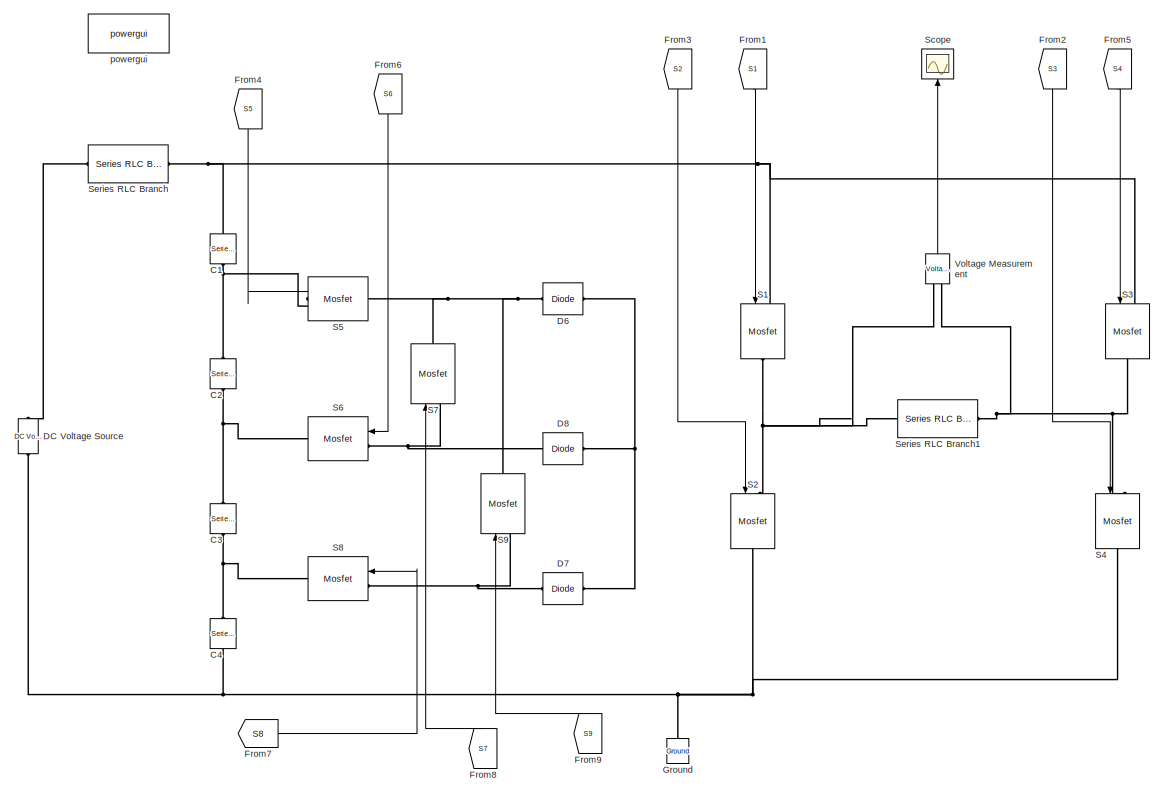
[diagram: root canvas - part 1/2, left side, full height]
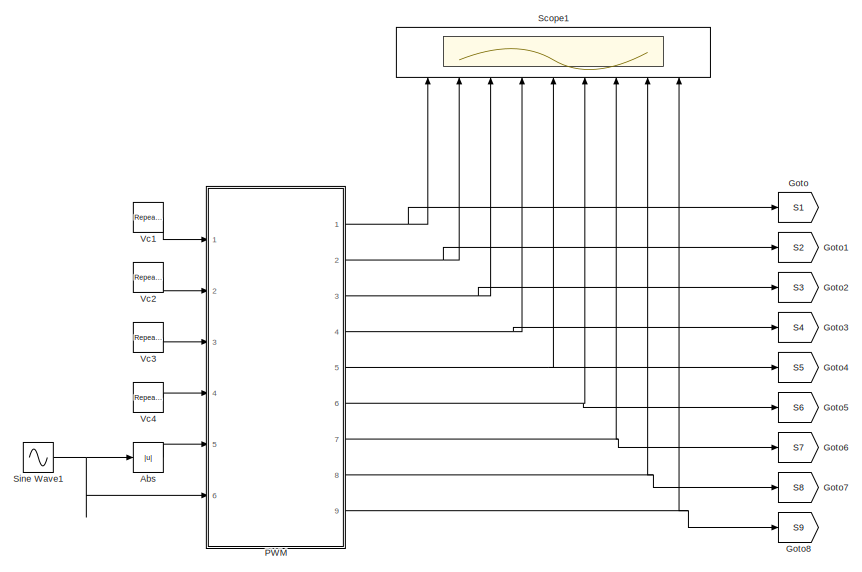
[diagram: root canvas - part 2/2, middle right region]
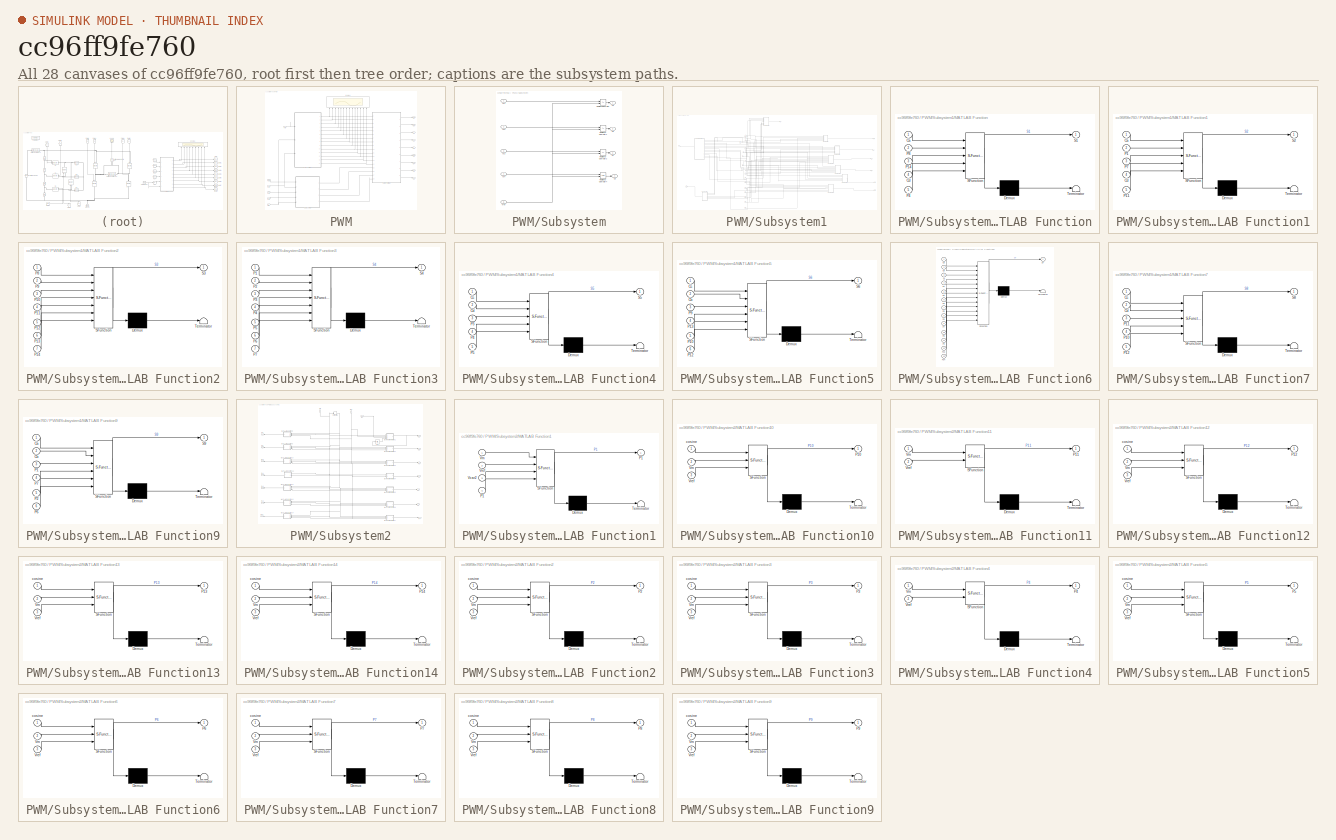
[diagram: thumbnail index - all 28 canvases of the model, root first then tree order]
MODEL slx_cc96ff9fe760
KIND model
CONFIG AbsTol = auto
CONFIG EnableMultiTasking = off
CONFIG FixedStep = 1e-5
CONFIG MaxStep = 1e-4
CONFIG MinStep = auto
CONFIG RelTol = 1e-3
CONFIG SampleTimeConstraint = Unconstrained
CONFIG Solver = VariableStepAuto
CONFIG SolverName = VariableStepAuto
CONFIG StartTime = 0.0
CONFIG StopTime = 1
BLOCK [Abs] Abs
  SaturateOnIntegerOverflow = off
BLOCK [Reference] C1  REF=powerlib/Elements/Series RLC Branch
  Ports = [0, 0, 0, 0, 0, 1, 1]
  SourceBlock = powerlib/Elements/Series RLC Branch
  SourceProductBaseCode = PS
  SourceProductName = Simscape Power Systems
  SourceType = Series RLC Branch
BLOCK [Reference] C2  REF=powerlib/Elements/Series RLC Branch
  Ports = [0, 0, 0, 0, 0, 1, 1]
  SourceBlock = powerlib/Elements/Series RLC Branch
  SourceProductBaseCode = PS
  SourceProductName = Simscape Power Systems
  SourceType = Series RLC Branch
BLOCK [Reference] C3  REF=powerlib/Elements/Series RLC Branch
  Ports = [0, 0, 0, 0, 0, 1, 1]
  SourceBlock = powerlib/Elements/Series RLC Branch
  SourceProductBaseCode = PS
  SourceProductName = Simscape Power Systems
  SourceType = Series RLC Branch
BLOCK [Reference] C4  REF=powerlib/Elements/Series RLC Branch
  Ports = [0, 0, 0, 0, 0, 1, 1]
  SourceBlock = powerlib/Elements/Series RLC Branch
  SourceProductBaseCode = PS
  SourceProductName = Simscape Power Systems
  SourceType = Series RLC Branch
BLOCK [Reference] D6  REF=powerlib/Power
Electronics/Diode
  Ports = [0, 0, 0, 0, 0, 1, 1]
  SourceBlock = powerlib/Power\nElectronics/Diode
  SourceProductBaseCode = PS
  SourceProductName = Simscape Power Systems
  SourceType = Diode
BLOCK [Reference] D7  REF=powerlib/Power
Electronics/Diode
  Ports = [0, 0, 0, 0, 0, 1, 1]
  SourceBlock = powerlib/Power\nElectronics/Diode
  SourceProductBaseCode = PS
  SourceProductName = Simscape Power Systems
  SourceType = Diode
BLOCK [Reference] D8  REF=powerlib/Power
Electronics/Diode
  Ports = [0, 0, 0, 0, 0, 1, 1]
  SourceBlock = powerlib/Power\nElectronics/Diode
  SourceProductBaseCode = PS
  SourceProductName = Simscape Power Systems
  SourceType = Diode
BLOCK [Reference] DC Voltage Source  REF=powerlib/Electrical
Sources/DC Voltage Source
  Ports = [0, 0, 0, 0, 0, 1, 1]
  SourceBlock = powerlib/Electrical\nSources/DC Voltage Source
  SourceProductBaseCode = PS
  SourceProductName = Simscape Power Systems
  SourceType = DC Voltage Source
BLOCK [From] From1
  GotoTag = S1
BLOCK [From] From2
  GotoTag = S3
BLOCK [From] From3
  GotoTag = S2
BLOCK [From] From4
  GotoTag = S5
BLOCK [From] From5
  GotoTag = S4
BLOCK [From] From6
  GotoTag = S6
BLOCK [From] From7
  GotoTag = S8
BLOCK [From] From8
  GotoTag = S7
BLOCK [From] From9
  GotoTag = S9
BLOCK [Goto] Goto
  GotoTag = S1
BLOCK [Goto] Goto1
  GotoTag = S2
BLOCK [Goto] Goto2
  GotoTag = S3
BLOCK [Goto] Goto3
  GotoTag = S4
BLOCK [Goto] Goto4
  GotoTag = S5
BLOCK [Goto] Goto5
  GotoTag = S6
BLOCK [Goto] Goto6
  GotoTag = S7
BLOCK [Goto] Goto7
  GotoTag = S8
BLOCK [Goto] Goto8
  GotoTag = S9
BLOCK [Reference] Ground  REF=powerlib/Elements/Ground
  Ports = [0, 0, 0, 0, 0, 1]
  SourceBlock = powerlib/Elements/Ground
  SourceProductBaseCode = PS
  SourceProductName = Simscape Power Systems
  SourceType = Ground
BLOCK [SubSystem] PWM
  Ports = [6, 9]
  RequestExecContextInheritance = off
  Variant = off
BLOCK [Outport] PWM/S1
  IconDisplay = Port number
BLOCK [Outport] PWM/S2
  IconDisplay = Port number
  Port = 2
BLOCK [Outport] PWM/S3
  IconDisplay = Port number
  Port = 3
BLOCK [Outport] PWM/S4
  IconDisplay = Port number
  Port = 4
BLOCK [Outport] PWM/S5
  IconDisplay = Port number
  Port = 5
BLOCK [Outport] PWM/S6
  IconDisplay = Port number
  Port = 6
BLOCK [Outport] PWM/S7
  IconDisplay = Port number
  Port = 7
BLOCK [Outport] PWM/S8
  IconDisplay = Port number
  Port = 8
BLOCK [Outport] PWM/S9
  IconDisplay = Port number
  Port = 9
BLOCK [Scope] PWM/Scope2
  NumInputPorts = 14
  Ports = [14]
  ScopeSpecificationString = Simulink.scopes.TimeScopeBlockCfg('CurrentConfiguration', extmgr.ConfigurationSet(extmgr.Configuration('Core','General UI',true,'FigureColor',[0.8 0.8 0.8]),extmgr.Configuration('Core','Source UI',true),extmgr.Configuration('Sources','WiredSimulink',true,'DataLoggingVariableName','ScopeData2'),extmgr.Configuration('Visuals','Time Domain',true,'SerializedDisplays',{struct('MinYLimReal','-0.125','Ma...<+2385ch>
BLOCK [SubSystem] PWM/Subsystem
  Ports = [5, 4]
  RequestExecContextInheritance = off
  Variant = off
BLOCK [Outport] PWM/Subsystem/Ca
  IconDisplay = Port number
BLOCK [Outport] PWM/Subsystem/Cb
  IconDisplay = Port number
  Port = 2
BLOCK [Outport] PWM/Subsystem/Cc
  IconDisplay = Port number
  Port = 3
BLOCK [Outport] PWM/Subsystem/Cd
  IconDisplay = Port number
  Port = 4
BLOCK [RelationalOperator] PWM/Subsystem/Relational Operator
  InputSameDT = off
  Operator = <=
  OutDataTypeStr = boolean
  Ports = [2, 1]
  RndMeth = Simplest
BLOCK [RelationalOperator] PWM/Subsystem/Relational Operator1
  InputSameDT = off
  Operator = <=
  OutDataTypeStr = boolean
  Ports = [2, 1]
  RndMeth = Simplest
BLOCK [RelationalOperator] PWM/Subsystem/Relational Operator2
  InputSameDT = off
  Operator = <=
  OutDataTypeStr = boolean
  Ports = [2, 1]
  RndMeth = Simplest
BLOCK [RelationalOperator] PWM/Subsystem/Relational Operator4
  InputSameDT = off
  OutDataTypeStr = boolean
  Ports = [2, 1]
  RndMeth = Simplest
BLOCK [Inport] PWM/Subsystem/Vc1
  IconDisplay = Port number
BLOCK [Inport] PWM/Subsystem/Vc2
  IconDisplay = Port number
  Port = 2
BLOCK [Inport] PWM/Subsystem/Vc3
  IconDisplay = Port number
  Port = 3
BLOCK [Inport] PWM/Subsystem/Vc4
  IconDisplay = Port number
  Port = 4
BLOCK [Inport] PWM/Subsystem/Vref 
  IconDisplay = Port number
  Port = 5
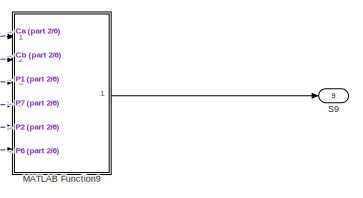
[diagram: PWM/Subsystem1 - part 1/6, top center region]
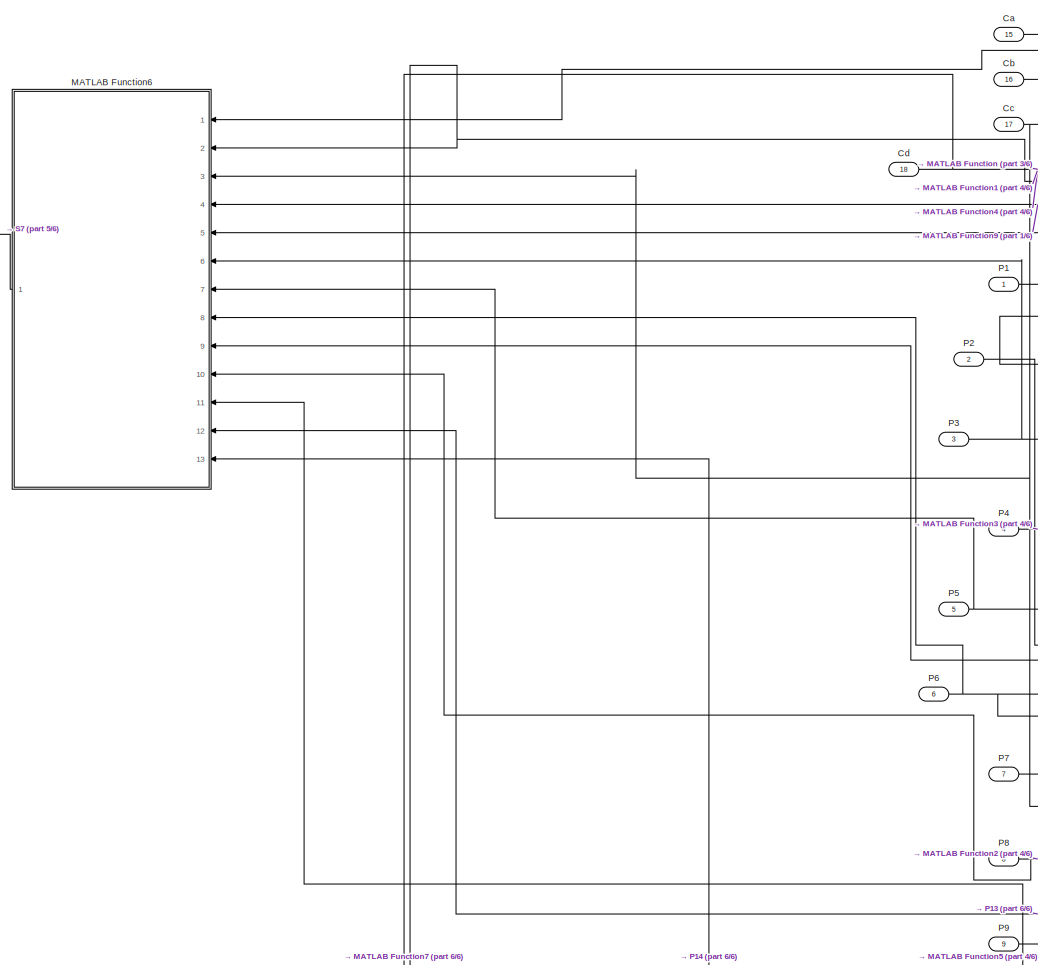
[diagram: PWM/Subsystem1 - part 2/6, middle left region]
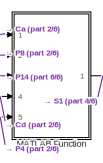
[diagram: PWM/Subsystem1 - part 3/6, top right region]
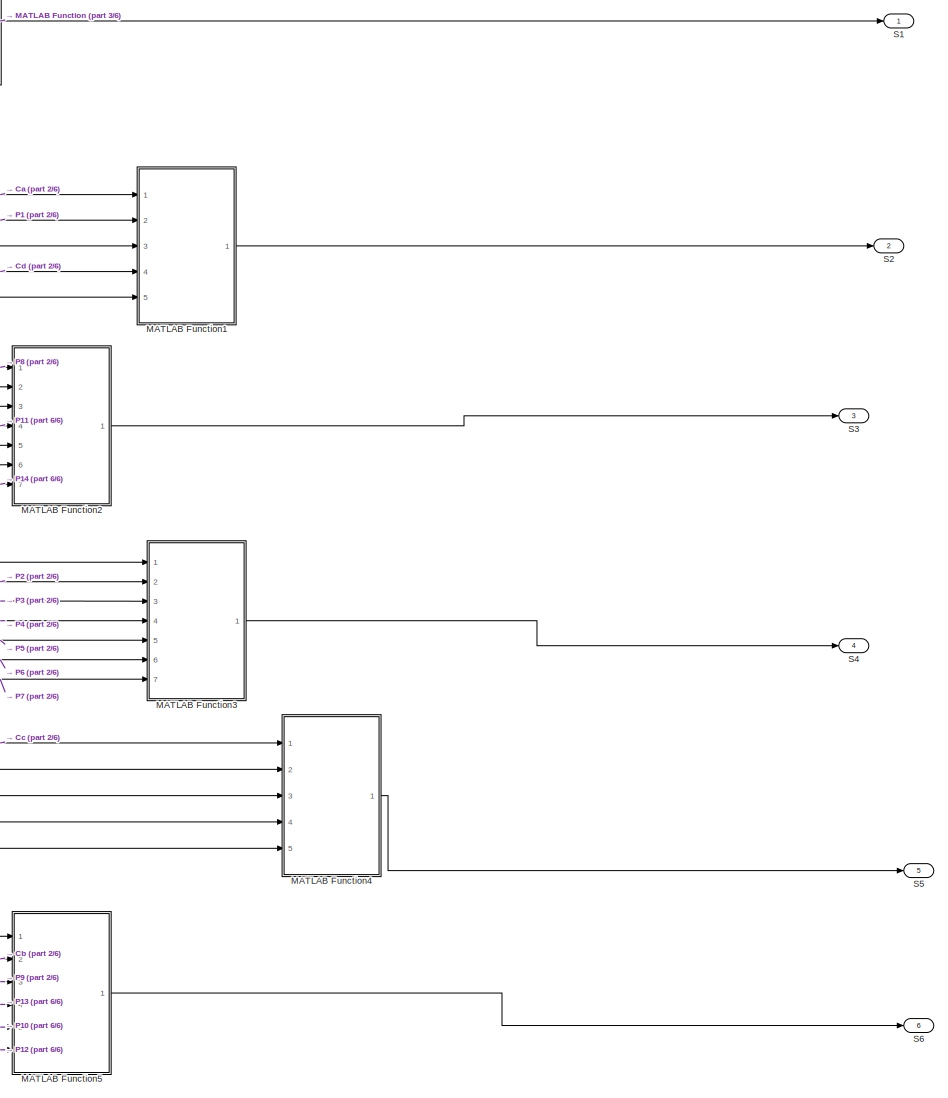
[diagram: PWM/Subsystem1 - part 4/6, middle right region]
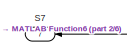
[diagram: PWM/Subsystem1 - part 5/6, top left region]
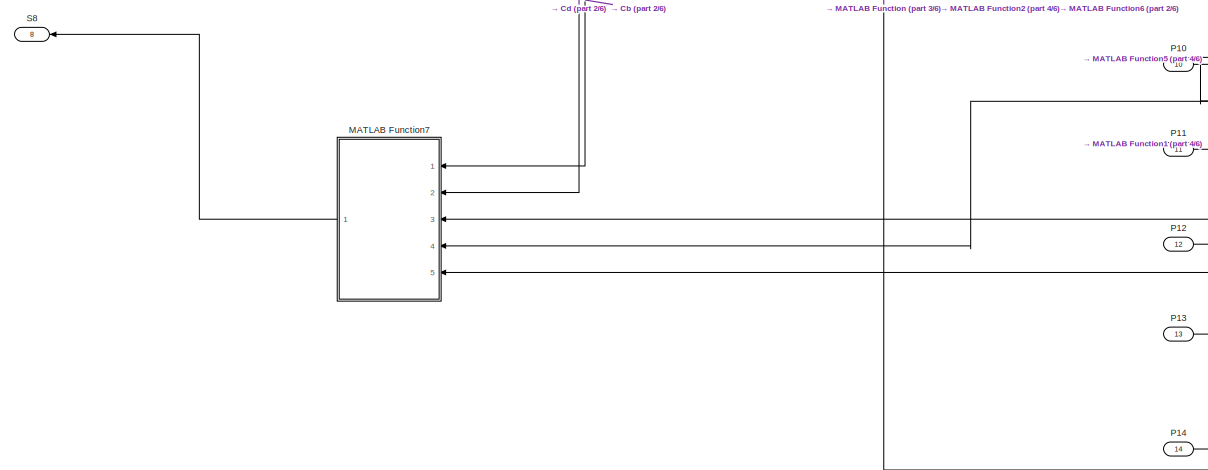
[diagram: PWM/Subsystem1 - part 6/6, bottom left region]
BLOCK [SubSystem] PWM/Subsystem1
  Ports = [18, 9]
  RequestExecContextInheritance = off
  Variant = off
BLOCK [Inport] PWM/Subsystem1/Ca
  IconDisplay = Port number
  Port = 15
BLOCK [Inport] PWM/Subsystem1/Cb
  IconDisplay = Port number
  Port = 16
BLOCK [Inport] PWM/Subsystem1/Cc
  IconDisplay = Port number
  Port = 17
BLOCK [Inport] PWM/Subsystem1/Cd
  IconDisplay = Port number
  Port = 18
BLOCK [SubSystem] PWM/Subsystem1/MATLAB Function
  ErrorFcn = Stateflow.Translate.translate
  PermitHierarchicalResolution = ExplicitOnly
  Ports = [5, 1]
  RequestExecContextInheritance = off
  SFBlockType = MATLAB Function
  TreatAsAtomicUnit = on
  Variant = off
BLOCK [Demux] PWM/Subsystem1/MATLAB Function/ Demux 
  Outputs = 1
  Ports = [1, 1]
BLOCK [S-Function] PWM/Subsystem1/MATLAB Function/ SFunction 
  EnableBusSupport = on
  FunctionName = sf_sfun
  PortCounts = [5 2]
  Ports = [5, 2]
  SFcnIsStateOwnerBlock = off
  SFunctionDeploymentMode = off
  Tag = Stateflow S-Function NineLevelNEW 1
BLOCK [Terminator] PWM/Subsystem1/MATLAB Function/ Terminator 
BLOCK [Inport] PWM/Subsystem1/MATLAB Function/Ca
  IconDisplay = Port number
BLOCK [Inport] PWM/Subsystem1/MATLAB Function/Cd
  IconDisplay = Port number
  Port = 4
BLOCK [Inport] PWM/Subsystem1/MATLAB Function/P14
  IconDisplay = Port number
  Port = 3
BLOCK [Inport] PWM/Subsystem1/MATLAB Function/P4
  IconDisplay = Port number
  Port = 5
BLOCK [Inport] PWM/Subsystem1/MATLAB Function/P8
  IconDisplay = Port number
  Port = 2
BLOCK [Outport] PWM/Subsystem1/MATLAB Function/S1
  IconDisplay = Port number
BLOCK [SubSystem] PWM/Subsystem1/MATLAB Function1
  ErrorFcn = Stateflow.Translate.translate
  PermitHierarchicalResolution = ExplicitOnly
  Ports = [5, 1]
  RequestExecContextInheritance = off
  SFBlockType = MATLAB Function
  TreatAsAtomicUnit = on
  Variant = off
BLOCK [Demux] PWM/Subsystem1/MATLAB Function1/ Demux 
  Outputs = 1
  Ports = [1, 1]
BLOCK [S-Function] PWM/Subsystem1/MATLAB Function1/ SFunction 
  EnableBusSupport = on
  FunctionName = sf_sfun
  PortCounts = [5 2]
  Ports = [5, 2]
  SFcnIsStateOwnerBlock = off
  SFunctionDeploymentMode = off
  Tag = Stateflow S-Function NineLevelNEW 3
BLOCK [Terminator] PWM/Subsystem1/MATLAB Function1/ Terminator 
BLOCK [Inport] PWM/Subsystem1/MATLAB Function1/Ca
  IconDisplay = Port number
BLOCK [Inport] PWM/Subsystem1/MATLAB Function1/Cd
  IconDisplay = Port number
  Port = 4
BLOCK [Inport] PWM/Subsystem1/MATLAB Function1/P1
  IconDisplay = Port number
  Port = 2
BLOCK [Inport] PWM/Subsystem1/MATLAB Function1/P11
  IconDisplay = Port number
  Port = 5
BLOCK [Inport] PWM/Subsystem1/MATLAB Function1/P7
  IconDisplay = Port number
  Port = 3
BLOCK [Outport] PWM/Subsystem1/MATLAB Function1/S2
  IconDisplay = Port number
BLOCK [SubSystem] PWM/Subsystem1/MATLAB Function2
  ErrorFcn = Stateflow.Translate.translate
  PermitHierarchicalResolution = ExplicitOnly
  Ports = [7, 1]
  RequestExecContextInheritance = off
  SFBlockType = MATLAB Function
  TreatAsAtomicUnit = on
  Variant = off
BLOCK [Demux] PWM/Subsystem1/MATLAB Function2/ Demux 
  Outputs = 1
  Ports = [1, 1]
BLOCK [S-Function] PWM/Subsystem1/MATLAB Function2/ SFunction 
  EnableBusSupport = on
  FunctionName = sf_sfun
  PortCounts = [7 2]
  Ports = [7, 2]
  SFcnIsStateOwnerBlock = off
  SFunctionDeploymentMode = off
  Tag = Stateflow S-Function NineLevelNEW 4
BLOCK [Terminator] PWM/Subsystem1/MATLAB Function2/ Terminator 
BLOCK [Inport] PWM/Subsystem1/MATLAB Function2/P10
  IconDisplay = Port number
  Port = 3
BLOCK [Inport] PWM/Subsystem1/MATLAB Function2/P11
  IconDisplay = Port number
  Port = 4
BLOCK [Inport] PWM/Subsystem1/MATLAB Function2/P12
  IconDisplay = Port number
  Port = 5
BLOCK [Inport] PWM/Subsystem1/MATLAB Function2/P13
  IconDisplay = Port number
  Port = 6
BLOCK [Inport] PWM/Subsystem1/MATLAB Function2/P14
  IconDisplay = Port number
  Port = 7
BLOCK [Inport] PWM/Subsystem1/MATLAB Function2/P8
  IconDisplay = Port number
BLOCK [Inport] PWM/Subsystem1/MATLAB Function2/P9
  IconDisplay = Port number
  Port = 2
BLOCK [Outport] PWM/Subsystem1/MATLAB Function2/S3
  IconDisplay = Port number
BLOCK [SubSystem] PWM/Subsystem1/MATLAB Function3
  ErrorFcn = Stateflow.Translate.translate
  PermitHierarchicalResolution = ExplicitOnly
  Ports = [7, 1]
  RequestExecContextInheritance = off
  SFBlockType = MATLAB Function
  TreatAsAtomicUnit = on
  Variant = off
BLOCK [Demux] PWM/Subsystem1/MATLAB Function3/ Demux 
  Outputs = 1
  Ports = [1, 1]
BLOCK [S-Function] PWM/Subsystem1/MATLAB Function3/ SFunction 
  EnableBusSupport = on
  FunctionName = sf_sfun
  PortCounts = [7 2]
  Ports = [7, 2]
  SFcnIsStateOwnerBlock = off
  SFunctionDeploymentMode = off
  Tag = Stateflow S-Function NineLevelNEW 5
BLOCK [Terminator] PWM/Subsystem1/MATLAB Function3/ Terminator 
BLOCK [Inport] PWM/Subsystem1/MATLAB Function3/P1
  IconDisplay = Port number
BLOCK [Inport] PWM/Subsystem1/MATLAB Function3/P2
  IconDisplay = Port number
  Port = 2
BLOCK [Inport] PWM/Subsystem1/MATLAB Function3/P3
  IconDisplay = Port number
  Port = 3
BLOCK [Inport] PWM/Subsystem1/MATLAB Function3/P4
  IconDisplay = Port number
  Port = 4
BLOCK [Inport] PWM/Subsystem1/MATLAB Function3/P5
  IconDisplay = Port number
  Port = 5
BLOCK [Inport] PWM/Subsystem1/MATLAB Function3/P6
  IconDisplay = Port number
  Port = 6
BLOCK [Inport] PWM/Subsystem1/MATLAB Function3/P7
  IconDisplay = Port number
  Port = 7
BLOCK [Outport] PWM/Subsystem1/MATLAB Function3/S4
  IconDisplay = Port number
BLOCK [SubSystem] PWM/Subsystem1/MATLAB Function4
  ErrorFcn = Stateflow.Translate.translate
  PermitHierarchicalResolution = ExplicitOnly
  Ports = [5, 1]
  RequestExecContextInheritance = off
  SFBlockType = MATLAB Function
  TreatAsAtomicUnit = on
  Variant = off
BLOCK [Demux] PWM/Subsystem1/MATLAB Function4/ Demux 
  Outputs = 1
  Ports = [1, 1]
BLOCK [S-Function] PWM/Subsystem1/MATLAB Function4/ SFunction 
  EnableBusSupport = on
  FunctionName = sf_sfun
  PortCounts = [5 2]
  Ports = [5, 2]
  SFcnIsStateOwnerBlock = off
  SFunctionDeploymentMode = off
  Tag = Stateflow S-Function NineLevelNEW 6
BLOCK [Terminator] PWM/Subsystem1/MATLAB Function4/ Terminator 
BLOCK [Inport] PWM/Subsystem1/MATLAB Function4/Cc
  IconDisplay = Port number
BLOCK [Inport] PWM/Subsystem1/MATLAB Function4/Cd
  IconDisplay = Port number
  Port = 2
BLOCK [Inport] PWM/Subsystem1/MATLAB Function4/P3
  IconDisplay = Port number
  Port = 3
BLOCK [Inport] PWM/Subsystem1/MATLAB Function4/P4
  IconDisplay = Port number
  Port = 4
BLOCK [Inport] PWM/Subsystem1/MATLAB Function4/P5
  IconDisplay = Port number
  Port = 5
BLOCK [Outport] PWM/Subsystem1/MATLAB Function4/S5
  IconDisplay = Port number
BLOCK [SubSystem] PWM/Subsystem1/MATLAB Function5
  ErrorFcn = Stateflow.Translate.translate
  PermitHierarchicalResolution = ExplicitOnly
  Ports = [6, 1]
  RequestExecContextInheritance = off
  SFBlockType = MATLAB Function
  TreatAsAtomicUnit = on
  Variant = off
BLOCK [Demux] PWM/Subsystem1/MATLAB Function5/ Demux 
  Outputs = 1
  Ports = [1, 1]
BLOCK [S-Function] PWM/Subsystem1/MATLAB Function5/ SFunction 
  EnableBusSupport = on
  FunctionName = sf_sfun
  PortCounts = [6 2]
  Ports = [6, 2]
  SFcnIsStateOwnerBlock = off
  SFunctionDeploymentMode = off
  Tag = Stateflow S-Function NineLevelNEW 7
BLOCK [Terminator] PWM/Subsystem1/MATLAB Function5/ Terminator 
BLOCK [Inport] PWM/Subsystem1/MATLAB Function5/Cb
  IconDisplay = Port number
  Port = 2
BLOCK [Inport] PWM/Subsystem1/MATLAB Function5/Cc
  IconDisplay = Port number
BLOCK [Inport] PWM/Subsystem1/MATLAB Function5/P10
  IconDisplay = Port number
  Port = 5
BLOCK [Inport] PWM/Subsystem1/MATLAB Function5/P12
  IconDisplay = Port number
  Port = 6
BLOCK [Inport] PWM/Subsystem1/MATLAB Function5/P13
  IconDisplay = Port number
  Port = 4
BLOCK [Inport] PWM/Subsystem1/MATLAB Function5/P9
  IconDisplay = Port number
  Port = 3
BLOCK [Outport] PWM/Subsystem1/MATLAB Function5/S6
  IconDisplay = Port number
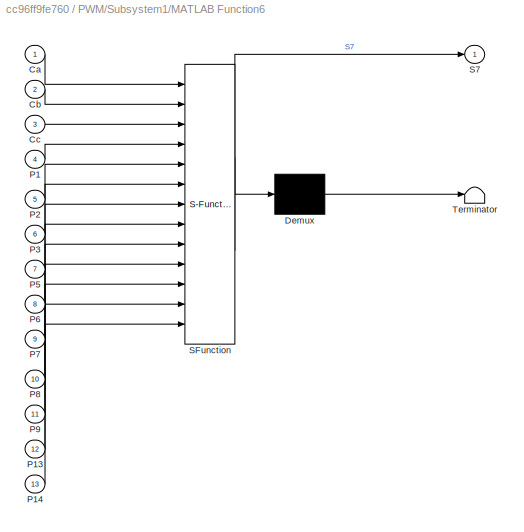
BLOCK [SubSystem] PWM/Subsystem1/MATLAB Function6
  ErrorFcn = Stateflow.Translate.translate
  PermitHierarchicalResolution = ExplicitOnly
  Ports = [13, 1]
  RequestExecContextInheritance = off
  SFBlockType = MATLAB Function
  TreatAsAtomicUnit = on
  Variant = off
BLOCK [Demux] PWM/Subsystem1/MATLAB Function6/ Demux 
  Outputs = 1
  Ports = [1, 1]
BLOCK [S-Function] PWM/Subsystem1/MATLAB Function6/ SFunction 
  EnableBusSupport = on
  FunctionName = sf_sfun
  PortCounts = [13 2]
  Ports = [13, 2]
  SFcnIsStateOwnerBlock = off
  SFunctionDeploymentMode = off
  Tag = Stateflow S-Function NineLevelNEW 8
BLOCK [Terminator] PWM/Subsystem1/MATLAB Function6/ Terminator 
BLOCK [Inport] PWM/Subsystem1/MATLAB Function6/Ca
  IconDisplay = Port number
BLOCK [Inport] PWM/Subsystem1/MATLAB Function6/Cb
  IconDisplay = Port number
  Port = 2
BLOCK [Inport] PWM/Subsystem1/MATLAB Function6/Cc
  IconDisplay = Port number
  Port = 3
BLOCK [Inport] PWM/Subsystem1/MATLAB Function6/P1
  IconDisplay = Port number
  Port = 4
BLOCK [Inport] PWM/Subsystem1/MATLAB Function6/P13
  IconDisplay = Port number
  Port = 12
BLOCK [Inport] PWM/Subsystem1/MATLAB Function6/P14
  IconDisplay = Port number
  Port = 13
BLOCK [Inport] PWM/Subsystem1/MATLAB Function6/P2
  IconDisplay = Port number
  Port = 5
BLOCK [Inport] PWM/Subsystem1/MATLAB Function6/P3
  IconDisplay = Port number
  Port = 6
BLOCK [Inport] PWM/Subsystem1/MATLAB Function6/P5
  IconDisplay = Port number
  Port = 7
BLOCK [Inport] PWM/Subsystem1/MATLAB Function6/P6
  IconDisplay = Port number
  Port = 8
BLOCK [Inport] PWM/Subsystem1/MATLAB Function6/P7
  IconDisplay = Port number
  Port = 9
BLOCK [Inport] PWM/Subsystem1/MATLAB Function6/P8
  IconDisplay = Port number
  Port = 10
BLOCK [Inport] PWM/Subsystem1/MATLAB Function6/P9
  IconDisplay = Port number
  Port = 11
BLOCK [Outport] PWM/Subsystem1/MATLAB Function6/S7
  IconDisplay = Port number
BLOCK [SubSystem] PWM/Subsystem1/MATLAB Function7
  ErrorFcn = Stateflow.Translate.translate
  PermitHierarchicalResolution = ExplicitOnly
  Ports = [5, 1]
  RequestExecContextInheritance = off
  SFBlockType = MATLAB Function
  TreatAsAtomicUnit = on
  Variant = off
BLOCK [Demux] PWM/Subsystem1/MATLAB Function7/ Demux 
  Outputs = 1
  Ports = [1, 1]
BLOCK [S-Function] PWM/Subsystem1/MATLAB Function7/ SFunction 
  EnableBusSupport = on
  FunctionName = sf_sfun
  PortCounts = [5 2]
  Ports = [5, 2]
  SFcnIsStateOwnerBlock = off
  SFunctionDeploymentMode = off
  Tag = Stateflow S-Function NineLevelNEW 9
BLOCK [Terminator] PWM/Subsystem1/MATLAB Function7/ Terminator 
BLOCK [Inport] PWM/Subsystem1/MATLAB Function7/Cc
  IconDisplay = Port number
BLOCK [Inport] PWM/Subsystem1/MATLAB Function7/Cd
  IconDisplay = Port number
  Port = 2
BLOCK [Inport] PWM/Subsystem1/MATLAB Function7/P10
  IconDisplay = Port number
  Port = 4
BLOCK [Inport] PWM/Subsystem1/MATLAB Function7/P11
  IconDisplay = Port number
  Port = 3
BLOCK [Inport] PWM/Subsystem1/MATLAB Function7/P12
  IconDisplay = Port number
  Port = 5
BLOCK [Outport] PWM/Subsystem1/MATLAB Function7/S8
  IconDisplay = Port number
BLOCK [SubSystem] PWM/Subsystem1/MATLAB Function9
  ErrorFcn = Stateflow.Translate.translate
  PermitHierarchicalResolution = ExplicitOnly
  Ports = [6, 1]
  RequestExecContextInheritance = off
  SFBlockType = MATLAB Function
  TreatAsAtomicUnit = on
  Variant = off
BLOCK [Demux] PWM/Subsystem1/MATLAB Function9/ Demux 
  Outputs = 1
  Ports = [1, 1]
BLOCK [S-Function] PWM/Subsystem1/MATLAB Function9/ SFunction 
  EnableBusSupport = on
  FunctionName = sf_sfun
  PortCounts = [6 2]
  Ports = [6, 2]
  SFcnIsStateOwnerBlock = off
  SFunctionDeploymentMode = off
  Tag = Stateflow S-Function NineLevelNEW 11
BLOCK [Terminator] PWM/Subsystem1/MATLAB Function9/ Terminator 
BLOCK [Inport] PWM/Subsystem1/MATLAB Function9/Ca
  IconDisplay = Port number
BLOCK [Inport] PWM/Subsystem1/MATLAB Function9/Cb
  IconDisplay = Port number
  Port = 2
BLOCK [Inport] PWM/Subsystem1/MATLAB Function9/P1
  IconDisplay = Port number
  Port = 3
BLOCK [Inport] PWM/Subsystem1/MATLAB Function9/P2
  IconDisplay = Port number
  Port = 5
BLOCK [Inport] PWM/Subsystem1/MATLAB Function9/P6
  IconDisplay = Port number
  Port = 6
BLOCK [Inport] PWM/Subsystem1/MATLAB Function9/P7
  IconDisplay = Port number
  Port = 4
BLOCK [Outport] PWM/Subsystem1/MATLAB Function9/S9
  IconDisplay = Port number
BLOCK [Inport] PWM/Subsystem1/P1
  IconDisplay = Port number
BLOCK [Inport] PWM/Subsystem1/P10
  IconDisplay = Port number
  Port = 10
BLOCK [Inport] PWM/Subsystem1/P11
  IconDisplay = Port number
  Port = 11
BLOCK [Inport] PWM/Subsystem1/P12
  IconDisplay = Port number
  Port = 12
BLOCK [Inport] PWM/Subsystem1/P13
  IconDisplay = Port number
  Port = 13
BLOCK [Inport] PWM/Subsystem1/P14
  IconDisplay = Port number
  Port = 14
BLOCK [Inport] PWM/Subsystem1/P2
  IconDisplay = Port number
  Port = 2
BLOCK [Inport] PWM/Subsystem1/P3
  IconDisplay = Port number
  Port = 3
BLOCK [Inport] PWM/Subsystem1/P4
  IconDisplay = Port number
  Port = 4
BLOCK [Inport] PWM/Subsystem1/P5
  IconDisplay = Port number
  Port = 5
BLOCK [Inport] PWM/Subsystem1/P6
  IconDisplay = Port number
  Port = 6
BLOCK [Inport] PWM/Subsystem1/P7
  IconDisplay = Port number
  Port = 7
BLOCK [Inport] PWM/Subsystem1/P8
  IconDisplay = Port number
  Port = 8
BLOCK [Inport] PWM/Subsystem1/P9
  IconDisplay = Port number
  Port = 9
BLOCK [Outport] PWM/Subsystem1/S1
  IconDisplay = Port number
BLOCK [Outport] PWM/Subsystem1/S2
  IconDisplay = Port number
  Port = 2
BLOCK [Outport] PWM/Subsystem1/S3
  IconDisplay = Port number
  Port = 3
BLOCK [Outport] PWM/Subsystem1/S4
  IconDisplay = Port number
  Port = 4
BLOCK [Outport] PWM/Subsystem1/S5
  IconDisplay = Port number
  Port = 5
BLOCK [Outport] PWM/Subsystem1/S6
  IconDisplay = Port number
  Port = 6
BLOCK [Outport] PWM/Subsystem1/S7
  IconDisplay = Port number
  Port = 7
BLOCK [Outport] PWM/Subsystem1/S8
  IconDisplay = Port number
  Port = 8
BLOCK [Outport] PWM/Subsystem1/S9
  IconDisplay = Port number
  Port = 9
BLOCK [SubSystem] PWM/Subsystem2
  Ports = [3, 14]
  RequestExecContextInheritance = off
  Variant = off
BLOCK [Derivative] PWM/Subsystem2/Derivative
BLOCK [InitialCondition] PWM/Subsystem2/IC1
  Value = 0
BLOCK [Inport] PWM/Subsystem2/In3
  IconDisplay = Port number
  Port = 3
BLOCK [SubSystem] PWM/Subsystem2/MATLAB Function1
  ErrorFcn = Stateflow.Translate.translate
  PermitHierarchicalResolution = ExplicitOnly
  Ports = [4, 1]
  RequestExecContextInheritance = off
  SFBlockType = MATLAB Function
  TreatAsAtomicUnit = on
  Variant = off
BLOCK [Demux] PWM/Subsystem2/MATLAB Function1/ Demux 
  Outputs = 1
  Ports = [1, 1]
BLOCK [S-Function] PWM/Subsystem2/MATLAB Function1/ SFunction 
  EnableBusSupport = on
  FunctionName = sf_sfun
  PortCounts = [4 2]
  Ports = [4, 2]
  SFcnIsStateOwnerBlock = off
  SFunctionDeploymentMode = off
  Tag = Stateflow S-Function NineLevelNEW 10
BLOCK [Terminator] PWM/Subsystem2/MATLAB Function1/ Terminator 
BLOCK [Outport] PWM/Subsystem2/MATLAB Function1/P1
  IconDisplay = Port number
BLOCK [Inport] PWM/Subsystem2/MATLAB Function1/P1 
  IconDisplay = Port number
  Port = 4
BLOCK [Inport] PWM/Subsystem2/MATLAB Function1/Vcar2
  IconDisplay = Port number
  Port = 3
BLOCK [Inport] PWM/Subsystem2/MATLAB Function1/Vm
  IconDisplay = Port number
BLOCK [Inport] PWM/Subsystem2/MATLAB Function1/Vref
  IconDisplay = Port number
  Port = 2
BLOCK [SubSystem] PWM/Subsystem2/MATLAB Function10
  ErrorFcn = Stateflow.Translate.translate
  PermitHierarchicalResolution = ExplicitOnly
  Ports = [3, 1]
  RequestExecContextInheritance = off
  SFBlockType = MATLAB Function
  TreatAsAtomicUnit = on
  Variant = off
BLOCK [Demux] PWM/Subsystem2/MATLAB Function10/ Demux 
  Outputs = 1
  Ports = [1, 1]
BLOCK [S-Function] PWM/Subsystem2/MATLAB Function10/ SFunction 
  EnableBusSupport = on
  FunctionName = sf_sfun
  PortCounts = [3 2]
  Ports = [3, 2]
  SFcnIsStateOwnerBlock = off
  SFunctionDeploymentMode = off
  Tag = Stateflow S-Function NineLevelNEW 18
BLOCK [Terminator] PWM/Subsystem2/MATLAB Function10/ Terminator 
BLOCK [Outport] PWM/Subsystem2/MATLAB Function10/P10
  IconDisplay = Port number
BLOCK [Inport] PWM/Subsystem2/MATLAB Function10/Vm
  IconDisplay = Port number
  Port = 2
BLOCK [Inport] PWM/Subsystem2/MATLAB Function10/Vref
  IconDisplay = Port number
  Port = 3
BLOCK [Inport] PWM/Subsystem2/MATLAB Function10/cosine
  IconDisplay = Port number
BLOCK [SubSystem] PWM/Subsystem2/MATLAB Function11
  ErrorFcn = Stateflow.Translate.translate
  PermitHierarchicalResolution = ExplicitOnly
  Ports = [2, 1]
  RequestExecContextInheritance = off
  SFBlockType = MATLAB Function
  TreatAsAtomicUnit = on
  Variant = off
BLOCK [Demux] PWM/Subsystem2/MATLAB Function11/ Demux 
  Outputs = 1
  Ports = [1, 1]
BLOCK [S-Function] PWM/Subsystem2/MATLAB Function11/ SFunction 
  EnableBusSupport = on
  FunctionName = sf_sfun
  PortCounts = [2 2]
  Ports = [2, 2]
  SFcnIsStateOwnerBlock = off
  SFunctionDeploymentMode = off
  Tag = Stateflow S-Function NineLevelNEW 19
BLOCK [Terminator] PWM/Subsystem2/MATLAB Function11/ Terminator 
BLOCK [Outport] PWM/Subsystem2/MATLAB Function11/P11
  IconDisplay = Port number
BLOCK [Inport] PWM/Subsystem2/MATLAB Function11/Vm
  IconDisplay = Port number
BLOCK [Inport] PWM/Subsystem2/MATLAB Function11/Vref
  IconDisplay = Port number
  Port = 2
BLOCK [SubSystem] PWM/Subsystem2/MATLAB Function12
  ErrorFcn = Stateflow.Translate.translate
  PermitHierarchicalResolution = ExplicitOnly
  Ports = [3, 1]
  RequestExecContextInheritance = off
  SFBlockType = MATLAB Function
  TreatAsAtomicUnit = on
  Variant = off
BLOCK [Demux] PWM/Subsystem2/MATLAB Function12/ Demux 
  Outputs = 1
  Ports = [1, 1]
BLOCK [S-Function] PWM/Subsystem2/MATLAB Function12/ SFunction 
  EnableBusSupport = on
  FunctionName = sf_sfun
  PortCounts = [3 2]
  Ports = [3, 2]
  SFcnIsStateOwnerBlock = off
  SFunctionDeploymentMode = off
  Tag = Stateflow S-Function NineLevelNEW 20
BLOCK [Terminator] PWM/Subsystem2/MATLAB Function12/ Terminator 
BLOCK [Outport] PWM/Subsystem2/MATLAB Function12/P12
  IconDisplay = Port number
BLOCK [Inport] PWM/Subsystem2/MATLAB Function12/Vm
  IconDisplay = Port number
  Port = 2
BLOCK [Inport] PWM/Subsystem2/MATLAB Function12/Vref
  IconDisplay = Port number
  Port = 3
BLOCK [Inport] PWM/Subsystem2/MATLAB Function12/cosine
  IconDisplay = Port number
BLOCK [SubSystem] PWM/Subsystem2/MATLAB Function13
  ErrorFcn = Stateflow.Translate.translate
  PermitHierarchicalResolution = ExplicitOnly
  Ports = [3, 1]
  RequestExecContextInheritance = off
  SFBlockType = MATLAB Function
  TreatAsAtomicUnit = on
  Variant = off
BLOCK [Demux] PWM/Subsystem2/MATLAB Function13/ Demux 
  Outputs = 1
  Ports = [1, 1]
BLOCK [S-Function] PWM/Subsystem2/MATLAB Function13/ SFunction 
  EnableBusSupport = on
  FunctionName = sf_sfun
  PortCounts = [3 2]
  Ports = [3, 2]
  SFcnIsStateOwnerBlock = off
  SFunctionDeploymentMode = off
  Tag = Stateflow S-Function NineLevelNEW 21
BLOCK [Terminator] PWM/Subsystem2/MATLAB Function13/ Terminator 
BLOCK [Outport] PWM/Subsystem2/MATLAB Function13/P13
  IconDisplay = Port number
BLOCK [Inport] PWM/Subsystem2/MATLAB Function13/Vm
  IconDisplay = Port number
  Port = 2
BLOCK [Inport] PWM/Subsystem2/MATLAB Function13/Vref
  IconDisplay = Port number
  Port = 3
BLOCK [Inport] PWM/Subsystem2/MATLAB Function13/cosine
  IconDisplay = Port number
BLOCK [SubSystem] PWM/Subsystem2/MATLAB Function14
  ErrorFcn = Stateflow.Translate.translate
  PermitHierarchicalResolution = ExplicitOnly
  Ports = [3, 1]
  RequestExecContextInheritance = off
  SFBlockType = MATLAB Function
  TreatAsAtomicUnit = on
  Variant = off
BLOCK [Demux] PWM/Subsystem2/MATLAB Function14/ Demux 
  Outputs = 1
  Ports = [1, 1]
BLOCK [S-Function] PWM/Subsystem2/MATLAB Function14/ SFunction 
  EnableBusSupport = on
  FunctionName = sf_sfun
  PortCounts = [3 2]
  Ports = [3, 2]
  SFcnIsStateOwnerBlock = off
  SFunctionDeploymentMode = off
  Tag = Stateflow S-Function NineLevelNEW 22
BLOCK [Terminator] PWM/Subsystem2/MATLAB Function14/ Terminator 
BLOCK [Outport] PWM/Subsystem2/MATLAB Function14/P14
  IconDisplay = Port number
BLOCK [Inport] PWM/Subsystem2/MATLAB Function14/Vm
  IconDisplay = Port number
  Port = 2
BLOCK [Inport] PWM/Subsystem2/MATLAB Function14/Vref
  IconDisplay = Port number
  Port = 3
BLOCK [Inport] PWM/Subsystem2/MATLAB Function14/cosine
  IconDisplay = Port number
BLOCK [SubSystem] PWM/Subsystem2/MATLAB Function2
  ErrorFcn = Stateflow.Translate.translate
  PermitHierarchicalResolution = ExplicitOnly
  Ports = [3, 1]
  RequestExecContextInheritance = off
  SFBlockType = MATLAB Function
  TreatAsAtomicUnit = on
  Variant = off
BLOCK [Demux] PWM/Subsystem2/MATLAB Function2/ Demux 
  Outputs = 1
  Ports = [1, 1]
BLOCK [S-Function] PWM/Subsystem2/MATLAB Function2/ SFunction 
  EnableBusSupport = on
  FunctionName = sf_sfun
  PortCounts = [3 2]
  Ports = [3, 2]
  SFcnIsStateOwnerBlock = off
  SFunctionDeploymentMode = off
  Tag = Stateflow S-Function NineLevelNEW 12
BLOCK [Terminator] PWM/Subsystem2/MATLAB Function2/ Terminator 
BLOCK [Outport] PWM/Subsystem2/MATLAB Function2/P2
  IconDisplay = Port number
BLOCK [Inport] PWM/Subsystem2/MATLAB Function2/Vm
  IconDisplay = Port number
  Port = 2
BLOCK [Inport] PWM/Subsystem2/MATLAB Function2/Vref
  IconDisplay = Port number
  Port = 3
BLOCK [Inport] PWM/Subsystem2/MATLAB Function2/cosine
  IconDisplay = Port number
BLOCK [SubSystem] PWM/Subsystem2/MATLAB Function3
  ErrorFcn = Stateflow.Translate.translate
  PermitHierarchicalResolution = ExplicitOnly
  Ports = [3, 1]
  RequestExecContextInheritance = off
  SFBlockType = MATLAB Function
  TreatAsAtomicUnit = on
  Variant = off
BLOCK [Demux] PWM/Subsystem2/MATLAB Function3/ Demux 
  Outputs = 1
  Ports = [1, 1]
BLOCK [S-Function] PWM/Subsystem2/MATLAB Function3/ SFunction 
  EnableBusSupport = on
  FunctionName = sf_sfun
  PortCounts = [3 2]
  Ports = [3, 2]
  SFcnIsStateOwnerBlock = off
  SFunctionDeploymentMode = off
  Tag = Stateflow S-Function NineLevelNEW 13
BLOCK [Terminator] PWM/Subsystem2/MATLAB Function3/ Terminator 
BLOCK [Outport] PWM/Subsystem2/MATLAB Function3/P3
  IconDisplay = Port number
BLOCK [Inport] PWM/Subsystem2/MATLAB Function3/Vm
  IconDisplay = Port number
  Port = 2
BLOCK [Inport] PWM/Subsystem2/MATLAB Function3/Vref
  IconDisplay = Port number
  Port = 3
BLOCK [Inport] PWM/Subsystem2/MATLAB Function3/cosine
  IconDisplay = Port number
BLOCK [SubSystem] PWM/Subsystem2/MATLAB Function4
  ErrorFcn = Stateflow.Translate.translate
  PermitHierarchicalResolution = ExplicitOnly
  Ports = [2, 1]
  RequestExecContextInheritance = off
  SFBlockType = MATLAB Function
  TreatAsAtomicUnit = on
  Variant = off
BLOCK [Demux] PWM/Subsystem2/MATLAB Function4/ Demux 
  Outputs = 1
  Ports = [1, 1]
BLOCK [S-Function] PWM/Subsystem2/MATLAB Function4/ SFunction 
  EnableBusSupport = on
  FunctionName = sf_sfun
  PortCounts = [2 2]
  Ports = [2, 2]
  SFcnIsStateOwnerBlock = off
  SFunctionDeploymentMode = off
  Tag = Stateflow S-Function NineLevelNEW 14
BLOCK [Terminator] PWM/Subsystem2/MATLAB Function4/ Terminator 
BLOCK [Outport] PWM/Subsystem2/MATLAB Function4/P4
  IconDisplay = Port number
BLOCK [Inport] PWM/Subsystem2/MATLAB Function4/Vm
  IconDisplay = Port number
BLOCK [Inport] PWM/Subsystem2/MATLAB Function4/Vref
  IconDisplay = Port number
  Port = 2
BLOCK [SubSystem] PWM/Subsystem2/MATLAB Function5
  ErrorFcn = Stateflow.Translate.translate
  PermitHierarchicalResolution = ExplicitOnly
  Ports = [3, 1]
  RequestExecContextInheritance = off
  SFBlockType = MATLAB Function
  TreatAsAtomicUnit = on
  Variant = off
BLOCK [Demux] PWM/Subsystem2/MATLAB Function5/ Demux 
  Outputs = 1
  Ports = [1, 1]
BLOCK [S-Function] PWM/Subsystem2/MATLAB Function5/ SFunction 
  EnableBusSupport = on
  FunctionName = sf_sfun
  PortCounts = [3 2]
  Ports = [3, 2]
  SFcnIsStateOwnerBlock = off
  SFunctionDeploymentMode = off
  Tag = Stateflow S-Function NineLevelNEW 15
BLOCK [Terminator] PWM/Subsystem2/MATLAB Function5/ Terminator 
BLOCK [Outport] PWM/Subsystem2/MATLAB Function5/P5
  IconDisplay = Port number
BLOCK [Inport] PWM/Subsystem2/MATLAB Function5/Vm
  IconDisplay = Port number
  Port = 2
BLOCK [Inport] PWM/Subsystem2/MATLAB Function5/Vref
  IconDisplay = Port number
  Port = 3
BLOCK [Inport] PWM/Subsystem2/MATLAB Function5/cosine
  IconDisplay = Port number
BLOCK [SubSystem] PWM/Subsystem2/MATLAB Function6
  ErrorFcn = Stateflow.Translate.translate
  PermitHierarchicalResolution = ExplicitOnly
  Ports = [3, 1]
  RequestExecContextInheritance = off
  SFBlockType = MATLAB Function
  TreatAsAtomicUnit = on
  Variant = off
BLOCK [Demux] PWM/Subsystem2/MATLAB Function6/ Demux 
  Outputs = 1
  Ports = [1, 1]
BLOCK [S-Function] PWM/Subsystem2/MATLAB Function6/ SFunction 
  EnableBusSupport = on
  FunctionName = sf_sfun
  PortCounts = [3 2]
  Ports = [3, 2]
  SFcnIsStateOwnerBlock = off
  SFunctionDeploymentMode = off
  Tag = Stateflow S-Function NineLevelNEW 16
BLOCK [Terminator] PWM/Subsystem2/MATLAB Function6/ Terminator 
BLOCK [Outport] PWM/Subsystem2/MATLAB Function6/P6
  IconDisplay = Port number
BLOCK [Inport] PWM/Subsystem2/MATLAB Function6/Vm
  IconDisplay = Port number
  Port = 2
BLOCK [Inport] PWM/Subsystem2/MATLAB Function6/Vref
  IconDisplay = Port number
  Port = 3
BLOCK [Inport] PWM/Subsystem2/MATLAB Function6/cosine
  IconDisplay = Port number
BLOCK [SubSystem] PWM/Subsystem2/MATLAB Function7
  ErrorFcn = Stateflow.Translate.translate
  PermitHierarchicalResolution = ExplicitOnly
  Ports = [3, 1]
  RequestExecContextInheritance = off
  SFBlockType = MATLAB Function
  TreatAsAtomicUnit = on
  Variant = off
BLOCK [Demux] PWM/Subsystem2/MATLAB Function7/ Demux 
  Outputs = 1
  Ports = [1, 1]
BLOCK [S-Function] PWM/Subsystem2/MATLAB Function7/ SFunction 
  EnableBusSupport = on
  FunctionName = sf_sfun
  PortCounts = [3 2]
  Ports = [3, 2]
  SFcnIsStateOwnerBlock = off
  SFunctionDeploymentMode = off
  Tag = Stateflow S-Function NineLevelNEW 17
BLOCK [Terminator] PWM/Subsystem2/MATLAB Function7/ Terminator 
BLOCK [Outport] PWM/Subsystem2/MATLAB Function7/P7
  IconDisplay = Port number
BLOCK [Inport] PWM/Subsystem2/MATLAB Function7/Vm
  IconDisplay = Port number
  Port = 2
BLOCK [Inport] PWM/Subsystem2/MATLAB Function7/Vref
  IconDisplay = Port number
  Port = 3
BLOCK [Inport] PWM/Subsystem2/MATLAB Function7/cosine
  IconDisplay = Port number
BLOCK [SubSystem] PWM/Subsystem2/MATLAB Function8
  ErrorFcn = Stateflow.Translate.translate
  PermitHierarchicalResolution = ExplicitOnly
  Ports = [3, 1]
  RequestExecContextInheritance = off
  SFBlockType = MATLAB Function
  TreatAsAtomicUnit = on
  Variant = off
BLOCK [Demux] PWM/Subsystem2/MATLAB Function8/ Demux 
  Outputs = 1
  Ports = [1, 1]
BLOCK [S-Function] PWM/Subsystem2/MATLAB Function8/ SFunction 
  EnableBusSupport = on
  FunctionName = sf_sfun
  PortCounts = [3 2]
  Ports = [3, 2]
  SFcnIsStateOwnerBlock = off
  SFunctionDeploymentMode = off
  Tag = Stateflow S-Function NineLevelNEW 23
BLOCK [Terminator] PWM/Subsystem2/MATLAB Function8/ Terminator 
BLOCK [Outport] PWM/Subsystem2/MATLAB Function8/P8
  IconDisplay = Port number
BLOCK [Inport] PWM/Subsystem2/MATLAB Function8/Vm
  IconDisplay = Port number
  Port = 2
BLOCK [Inport] PWM/Subsystem2/MATLAB Function8/Vref
  IconDisplay = Port number
  Port = 3
BLOCK [Inport] PWM/Subsystem2/MATLAB Function8/cosine
  IconDisplay = Port number
BLOCK [SubSystem] PWM/Subsystem2/MATLAB Function9
  ErrorFcn = Stateflow.Translate.translate
  PermitHierarchicalResolution = ExplicitOnly
  Ports = [3, 1]
  RequestExecContextInheritance = off
  SFBlockType = MATLAB Function
  TreatAsAtomicUnit = on
  Variant = off
BLOCK [Demux] PWM/Subsystem2/MATLAB Function9/ Demux 
  Outputs = 1
  Ports = [1, 1]
BLOCK [S-Function] PWM/Subsystem2/MATLAB Function9/ SFunction 
  EnableBusSupport = on
  FunctionName = sf_sfun
  PortCounts = [3 2]
  Ports = [3, 2]
  SFcnIsStateOwnerBlock = off
  SFunctionDeploymentMode = off
  Tag = Stateflow S-Function NineLevelNEW 24
BLOCK [Terminator] PWM/Subsystem2/MATLAB Function9/ Terminator 
BLOCK [Outport] PWM/Subsystem2/MATLAB Function9/P9
  IconDisplay = Port number
BLOCK [Inport] PWM/Subsystem2/MATLAB Function9/Vm
  IconDisplay = Port number
  Port = 2
BLOCK [Inport] PWM/Subsystem2/MATLAB Function9/Vref
  IconDisplay = Port number
  Port = 3
BLOCK [Inport] PWM/Subsystem2/MATLAB Function9/cosine
  IconDisplay = Port number
BLOCK [Outport] PWM/Subsystem2/P1
  IconDisplay = Port number
BLOCK [Outport] PWM/Subsystem2/P10
  IconDisplay = Port number
  Port = 10
BLOCK [Outport] PWM/Subsystem2/P11
  IconDisplay = Port number
  Port = 11
BLOCK [Outport] PWM/Subsystem2/P12
  IconDisplay = Port number
  Port = 12
BLOCK [Outport] PWM/Subsystem2/P13
  IconDisplay = Port number
  Port = 13
BLOCK [Outport] PWM/Subsystem2/P14
  IconDisplay = Port number
  Port = 14
BLOCK [Outport] PWM/Subsystem2/P2
  IconDisplay = Port number
  Port = 2
BLOCK [Outport] PWM/Subsystem2/P3
  IconDisplay = Port number
  Port = 3
BLOCK [Outport] PWM/Subsystem2/P4
  IconDisplay = Port number
  Port = 4
BLOCK [Outport] PWM/Subsystem2/P5
  IconDisplay = Port number
  Port = 5
BLOCK [Outport] PWM/Subsystem2/P6
  IconDisplay = Port number
  Port = 6
BLOCK [Outport] PWM/Subsystem2/P7
  IconDisplay = Port number
  Port = 7
BLOCK [Outport] PWM/Subsystem2/P8
  IconDisplay = Port number
  Port = 8
BLOCK [Outport] PWM/Subsystem2/P9
  IconDisplay = Port number
  Port = 9
BLOCK [Inport] PWM/Subsystem2/Vm
  IconDisplay = Port number
BLOCK [Inport] PWM/Subsystem2/Vref
  IconDisplay = Port number
  Port = 2
BLOCK [Inport] PWM/VC1
  IconDisplay = Port number
BLOCK [Inport] PWM/VC2
  IconDisplay = Port number
  Port = 2
BLOCK [Inport] PWM/VC3
  IconDisplay = Port number
  Port = 3
BLOCK [Inport] PWM/VC4
  IconDisplay = Port number
  Port = 4
BLOCK [Inport] PWM/Vm
  IconDisplay = Port number
  Port = 6
BLOCK [Inport] PWM/Vref
  IconDisplay = Port number
  Port = 5
BLOCK [Reference] S1  REF=powerlib/Power
Electronics/Mosfet
  Ports = [1, 0, 0, 0, 0, 1, 1]
  SourceBlock = powerlib/Power\nElectronics/Mosfet
  SourceProductBaseCode = PS
  SourceProductName = Simscape Power Systems
  SourceType = Mosfet
BLOCK [Reference] S2  REF=powerlib/Power
Electronics/Mosfet
  Ports = [1, 0, 0, 0, 0, 1, 1]
  SourceBlock = powerlib/Power\nElectronics/Mosfet
  SourceProductBaseCode = PS
  SourceProductName = Simscape Power Systems
  SourceType = Mosfet
BLOCK [Reference] S3  REF=powerlib/Power
Electronics/Mosfet
  Ports = [1, 0, 0, 0, 0, 1, 1]
  SourceBlock = powerlib/Power\nElectronics/Mosfet
  SourceProductBaseCode = PS
  SourceProductName = Simscape Power Systems
  SourceType = Mosfet
BLOCK [Reference] S4  REF=powerlib/Power
Electronics/Mosfet
  Ports = [1, 0, 0, 0, 0, 1, 1]
  SourceBlock = powerlib/Power\nElectronics/Mosfet
  SourceProductBaseCode = PS
  SourceProductName = Simscape Power Systems
  SourceType = Mosfet
BLOCK [Reference] S5  REF=powerlib/Power
Electronics/Mosfet
  Ports = [1, 0, 0, 0, 0, 1, 1]
  SourceBlock = powerlib/Power\nElectronics/Mosfet
  SourceProductBaseCode = PS
  SourceProductName = Simscape Power Systems
  SourceType = Mosfet
BLOCK [Reference] S6  REF=powerlib/Power
Electronics/Mosfet
  Ports = [1, 0, 0, 0, 0, 1, 1]
  SourceBlock = powerlib/Power\nElectronics/Mosfet
  SourceProductBaseCode = PS
  SourceProductName = Simscape Power Systems
  SourceType = Mosfet
BLOCK [Reference] S7  REF=powerlib/Power
Electronics/Mosfet
  Ports = [1, 0, 0, 0, 0, 1, 1]
  SourceBlock = powerlib/Power\nElectronics/Mosfet
  SourceProductBaseCode = PS
  SourceProductName = Simscape Power Systems
  SourceType = Mosfet
BLOCK [Reference] S8  REF=powerlib/Power
Electronics/Mosfet
  Ports = [1, 0, 0, 0, 0, 1, 1]
  SourceBlock = powerlib/Power\nElectronics/Mosfet
  SourceProductBaseCode = PS
  SourceProductName = Simscape Power Systems
  SourceType = Mosfet
BLOCK [Reference] S9  REF=powerlib/Power
Electronics/Mosfet
  Ports = [1, 0, 0, 0, 0, 1, 1]
  SourceBlock = powerlib/Power\nElectronics/Mosfet
  SourceProductBaseCode = PS
  SourceProductName = Simscape Power Systems
  SourceType = Mosfet
BLOCK [Scope] Scope
  NumInputPorts = 1
  Ports = [1]
  ScopeSpecificationString = Simulink.scopes.TimeScopeBlockCfg('CurrentConfiguration', extmgr.ConfigurationSet(extmgr.Configuration('Core','General UI',true),extmgr.Configuration('Core','Source UI',true),extmgr.Configuration('Sources','WiredSimulink',true,'DataLoggingVariableName','ScopeData1'),extmgr.Configuration('Visuals','Time Domain',true,'SerializedDisplays',{struct('MinYLimReal','-24.7613','MaxYLimReal','24.76755','YLa...<+1461ch>
BLOCK [Scope] Scope1
  NumInputPorts = 9
  Ports = [9]
  ScopeSpecificationString = Simulink.scopes.TimeScopeBlockCfg('CurrentConfiguration', extmgr.ConfigurationSet(extmgr.Configuration('Core','General UI',true),extmgr.Configuration('Core','Source UI',true),extmgr.Configuration('Sources','WiredSimulink',true,'DataLoggingVariableName','ScopeData2'),extmgr.Configuration('Visuals','Time Domain',true,'SerializedDisplays',{struct('MinYLimReal','-0.125','MaxYLimReal','1.125','YLabelRe...<+6994ch>
BLOCK [Reference] Series RLC Branch  REF=powerlib/Elements/Series RLC Branch
  Ports = [0, 0, 0, 0, 0, 1, 1]
  SourceBlock = powerlib/Elements/Series RLC Branch
  SourceProductBaseCode = PS
  SourceProductName = Simscape Power Systems
  SourceType = Series RLC Branch
BLOCK [Reference] Series RLC Branch1  REF=powerlib/Elements/Series RLC Branch
  Ports = [0, 0, 0, 0, 0, 1, 1]
  SourceBlock = powerlib/Elements/Series RLC Branch
  SourceProductBaseCode = PS
  SourceProductName = Simscape Power Systems
  SourceType = Series RLC Branch
BLOCK [Sin] Sine Wave1
  Amplitude = 4
  Frequency = 2*pi*50
  Ports = [0, 1]
  SampleTime = 0
  VectorParams1D = off
BLOCK [Reference] Vc1  REF=simulink/Sources/Repeating
Sequence
  Ports = [0, 1]
  SourceBlock = simulink/Sources/Repeating\nSequence
  SourceProductBaseCode = SL
  SourceProductName = Simulink
  SourceType = Repeating table
BLOCK [Reference] Vc2  REF=simulink/Sources/Repeating
Sequence
  Ports = [0, 1]
  SourceBlock = simulink/Sources/Repeating\nSequence
  SourceProductBaseCode = SL
  SourceProductName = Simulink
  SourceType = Repeating table
BLOCK [Reference] Vc3  REF=simulink/Sources/Repeating
Sequence
  Ports = [0, 1]
  SourceBlock = simulink/Sources/Repeating\nSequence
  SourceProductBaseCode = SL
  SourceProductName = Simulink
  SourceType = Repeating table
BLOCK [Reference] Vc4  REF=simulink/Sources/Repeating
Sequence
  Ports = [0, 1]
  SourceBlock = simulink/Sources/Repeating\nSequence
  SourceProductBaseCode = SL
  SourceProductName = Simulink
  SourceType = Repeating table
BLOCK [Reference] Voltage Measurement  REF=powerlib/Measurements/Voltage Measurement
  Ports = [0, 1, 0, 0, 0, 2]
  SourceBlock = powerlib/Measurements/Voltage Measurement
  SourceProductBaseCode = PS
  SourceProductName = Simscape Power Systems
  SourceType = Voltage Measurement
  UserDataPersistent = on
BLOCK [Reference] powergui  REF=powerlib/powergui
  Ports = []
  Priority = 1
  SourceBlock = powerlib/powergui
  SourceProductBaseCode = PS
  SourceProductName = Simscape Power Systems
  SourceType = PSB option menu block
LINE Abs:1 -> PWM:5
LINE From1:1 -> S1:1
LINE From2:1 -> S4:1
LINE From3:1 -> S2:1
LINE From4:1 -> S5:1
LINE From5:1 -> S3:1
LINE From6:1 -> S6:1
LINE From7:1 -> S8:1
LINE From8:1 -> S7:1
LINE From9:1 -> S9:1
LINE PWM/Subsystem/Relational Operator1:1 -> PWM/Subsystem/Cb:1
LINE PWM/Subsystem/Relational Operator2:1 -> PWM/Subsystem/Cc:1
LINE PWM/Subsystem/Relational Operator4:1 -> PWM/Subsystem/Cd:1
LINE PWM/Subsystem/Relational Operator:1 -> PWM/Subsystem/Ca:1
LINE PWM/Subsystem/Vc1:1 -> PWM/Subsystem/Relational Operator:1
LINE PWM/Subsystem/Vc2:1 -> PWM/Subsystem/Relational Operator1:1
LINE PWM/Subsystem/Vc3:1 -> PWM/Subsystem/Relational Operator2:1
LINE PWM/Subsystem/Vc4:1 -> PWM/Subsystem/Relational Operator4:1
NET PWM/Subsystem/Vref :1 -> PWM/Subsystem/Relational Operator1:2, PWM/Subsystem/Relational Operator2:2, PWM/Subsystem/Relational Operator4:2, PWM/Subsystem/Relational Operator:2
NET PWM/Subsystem1/Ca:1 -> PWM/Subsystem1/MATLAB Function1:1, PWM/Subsystem1/MATLAB Function6:1, PWM/Subsystem1/MATLAB Function9:1, PWM/Subsystem1/MATLAB Function:1
NET PWM/Subsystem1/Cb:1 -> PWM/Subsystem1/MATLAB Function5:2, PWM/Subsystem1/MATLAB Function6:2, PWM/Subsystem1/MATLAB Function7:1, PWM/Subsystem1/MATLAB Function9:2
NET PWM/Subsystem1/Cc:1 -> PWM/Subsystem1/MATLAB Function4:1, PWM/Subsystem1/MATLAB Function5:1, PWM/Subsystem1/MATLAB Function6:3
NET PWM/Subsystem1/Cd:1 -> PWM/Subsystem1/MATLAB Function1:4, PWM/Subsystem1/MATLAB Function4:2, PWM/Subsystem1/MATLAB Function7:2, PWM/Subsystem1/MATLAB Function:4
LINE PWM/Subsystem1/MATLAB Function1:1 -> PWM/Subsystem1/S2:1
LINE PWM/Subsystem1/MATLAB Function2:1 -> PWM/Subsystem1/S3:1
LINE PWM/Subsystem1/MATLAB Function3:1 -> PWM/Subsystem1/S4:1
LINE PWM/Subsystem1/MATLAB Function4:1 -> PWM/Subsystem1/S5:1
LINE PWM/Subsystem1/MATLAB Function5:1 -> PWM/Subsystem1/S6:1
LINE PWM/Subsystem1/MATLAB Function6:1 -> PWM/Subsystem1/S7:1
LINE PWM/Subsystem1/MATLAB Function7:1 -> PWM/Subsystem1/S8:1
LINE PWM/Subsystem1/MATLAB Function9:1 -> PWM/Subsystem1/S9:1
LINE PWM/Subsystem1/MATLAB Function:1 -> PWM/Subsystem1/S1:1
NET PWM/Subsystem1/P10:1 -> PWM/Subsystem1/MATLAB Function2:3, PWM/Subsystem1/MATLAB Function5:5, PWM/Subsystem1/MATLAB Function7:4
NET PWM/Subsystem1/P11:1 -> PWM/Subsystem1/MATLAB Function1:5, PWM/Subsystem1/MATLAB Function2:4, PWM/Subsystem1/MATLAB Function7:3
NET PWM/Subsystem1/P12:1 -> PWM/Subsystem1/MATLAB Function2:5, PWM/Subsystem1/MATLAB Function5:6, PWM/Subsystem1/MATLAB Function7:5
NET PWM/Subsystem1/P13:1 -> PWM/Subsystem1/MATLAB Function2:6, PWM/Subsystem1/MATLAB Function5:4, PWM/Subsystem1/MATLAB Function6:12
NET PWM/Subsystem1/P14:1 -> PWM/Subsystem1/MATLAB Function2:7, PWM/Subsystem1/MATLAB Function6:13, PWM/Subsystem1/MATLAB Function:3
NET PWM/Subsystem1/P1:1 -> PWM/Subsystem1/MATLAB Function1:2, PWM/Subsystem1/MATLAB Function3:1, PWM/Subsystem1/MATLAB Function6:4, PWM/Subsystem1/MATLAB Function9:3
NET PWM/Subsystem1/P2:1 -> PWM/Subsystem1/MATLAB Function3:2, PWM/Subsystem1/MATLAB Function6:5, PWM/Subsystem1/MATLAB Function9:5
NET PWM/Subsystem1/P3:1 -> PWM/Subsystem1/MATLAB Function3:3, PWM/Subsystem1/MATLAB Function4:3, PWM/Subsystem1/MATLAB Function6:6
NET PWM/Subsystem1/P4:1 -> PWM/Subsystem1/MATLAB Function3:4, PWM/Subsystem1/MATLAB Function4:4, PWM/Subsystem1/MATLAB Function:5
NET PWM/Subsystem1/P5:1 -> PWM/Subsystem1/MATLAB Function3:5, PWM/Subsystem1/MATLAB Function4:5, PWM/Subsystem1/MATLAB Function6:7
NET PWM/Subsystem1/P6:1 -> PWM/Subsystem1/MATLAB Function3:6, PWM/Subsystem1/MATLAB Function6:8, PWM/Subsystem1/MATLAB Function9:6
NET PWM/Subsystem1/P7:1 -> PWM/Subsystem1/MATLAB Function1:3, PWM/Subsystem1/MATLAB Function3:7, PWM/Subsystem1/MATLAB Function6:9, PWM/Subsystem1/MATLAB Function9:4
NET PWM/Subsystem1/P8:1 -> PWM/Subsystem1/MATLAB Function2:1, PWM/Subsystem1/MATLAB Function6:10, PWM/Subsystem1/MATLAB Function:2
NET PWM/Subsystem1/P9:1 -> PWM/Subsystem1/MATLAB Function2:2, PWM/Subsystem1/MATLAB Function5:3, PWM/Subsystem1/MATLAB Function6:11
LINE PWM/Subsystem1:1 -> PWM/S1:1
LINE PWM/Subsystem1:2 -> PWM/S2:1
LINE PWM/Subsystem1:3 -> PWM/S3:1
LINE PWM/Subsystem1:4 -> PWM/S4:1
LINE PWM/Subsystem1:5 -> PWM/S5:1
LINE PWM/Subsystem1:6 -> PWM/S6:1
LINE PWM/Subsystem1:7 -> PWM/S7:1
LINE PWM/Subsystem1:8 -> PWM/S8:1
LINE PWM/Subsystem1:9 -> PWM/S9:1
NET PWM/Subsystem2/Derivative:1 -> PWM/Subsystem2/MATLAB Function10:1, PWM/Subsystem2/MATLAB Function12:1, PWM/Subsystem2/MATLAB Function13:1, PWM/Subsystem2/MATLAB Function14:1, PWM/Subsystem2/MATLAB Function2:1, PWM/Subsystem2/MATLAB Function3:1, PWM/Subsystem2/MATLAB Function5:1, PWM/Subsystem2/MATLAB Function6:1, PWM/Subsystem2/MATLAB Function7:1, PWM/Subsystem2/MATLAB Function8:1, PWM/Subsystem2/MATLAB Function9:1
LINE PWM/Subsystem2/IC1:1 -> PWM/Subsystem2/MATLAB Function1:4
LINE PWM/Subsystem2/In3:1 -> PWM/Subsystem2/MATLAB Function1:3
LINE PWM/Subsystem2/MATLAB Function10:1 -> PWM/Subsystem2/P10:1
LINE PWM/Subsystem2/MATLAB Function11:1 -> PWM/Subsystem2/P11:1
LINE PWM/Subsystem2/MATLAB Function12:1 -> PWM/Subsystem2/P12:1
LINE PWM/Subsystem2/MATLAB Function13:1 -> PWM/Subsystem2/P13:1
LINE PWM/Subsystem2/MATLAB Function14:1 -> PWM/Subsystem2/P14:1
NET PWM/Subsystem2/MATLAB Function1:1 -> PWM/Subsystem2/IC1:1, PWM/Subsystem2/P1:1
LINE PWM/Subsystem2/MATLAB Function2:1 -> PWM/Subsystem2/P2:1
LINE PWM/Subsystem2/MATLAB Function3:1 -> PWM/Subsystem2/P3:1
LINE PWM/Subsystem2/MATLAB Function4:1 -> PWM/Subsystem2/P4:1
LINE PWM/Subsystem2/MATLAB Function5:1 -> PWM/Subsystem2/P5:1
LINE PWM/Subsystem2/MATLAB Function6:1 -> PWM/Subsystem2/P6:1
LINE PWM/Subsystem2/MATLAB Function7:1 -> PWM/Subsystem2/P7:1
LINE PWM/Subsystem2/MATLAB Function8:1 -> PWM/Subsystem2/P8:1
LINE PWM/Subsystem2/MATLAB Function9:1 -> PWM/Subsystem2/P9:1
NET PWM/Subsystem2/Vm:1 -> PWM/Subsystem2/Derivative:1, PWM/Subsystem2/MATLAB Function10:2, PWM/Subsystem2/MATLAB Function11:1, PWM/Subsystem2/MATLAB Function12:2, PWM/Subsystem2/MATLAB Function13:2, PWM/Subsystem2/MATLAB Function14:2, PWM/Subsystem2/MATLAB Function1:1, PWM/Subsystem2/MATLAB Function2:2, PWM/Subsystem2/MATLAB Function3:2, PWM/Subsystem2/MATLAB Function4:1, PWM/Subsystem2/MATLAB Function5:2, PWM/Subsystem2/MATLAB Function6:2, PWM/Subsystem2/MATLAB Function7:2, PWM/Subsystem2/MATLAB Function8:2, PWM/Subsystem2/MATLAB Function9:2
NET PWM/Subsystem2/Vref:1 -> PWM/Subsystem2/MATLAB Function10:3, PWM/Subsystem2/MATLAB Function11:2, PWM/Subsystem2/MATLAB Function12:3, PWM/Subsystem2/MATLAB Function13:3, PWM/Subsystem2/MATLAB Function14:3, PWM/Subsystem2/MATLAB Function1:2, PWM/Subsystem2/MATLAB Function2:3, PWM/Subsystem2/MATLAB Function3:3, PWM/Subsystem2/MATLAB Function4:2, PWM/Subsystem2/MATLAB Function5:3, PWM/Subsystem2/MATLAB Function6:3, PWM/Subsystem2/MATLAB Function7:3, PWM/Subsystem2/MATLAB Function8:3, PWM/Subsystem2/MATLAB Function9:3
NET PWM/Subsystem2:1 -> PWM/Scope2:1, PWM/Subsystem1:1
NET PWM/Subsystem2:10 -> PWM/Scope2:10, PWM/Subsystem1:10
NET PWM/Subsystem2:11 -> PWM/Scope2:11, PWM/Subsystem1:11
NET PWM/Subsystem2:12 -> PWM/Scope2:12, PWM/Subsystem1:12
NET PWM/Subsystem2:13 -> PWM/Scope2:13, PWM/Subsystem1:13
NET PWM/Subsystem2:14 -> PWM/Scope2:14, PWM/Subsystem1:14
NET PWM/Subsystem2:2 -> PWM/Scope2:2, PWM/Subsystem1:2
NET PWM/Subsystem2:3 -> PWM/Scope2:3, PWM/Subsystem1:3
NET PWM/Subsystem2:4 -> PWM/Scope2:4, PWM/Subsystem1:4
NET PWM/Subsystem2:5 -> PWM/Scope2:5, PWM/Subsystem1:5
NET PWM/Subsystem2:6 -> PWM/Scope2:6, PWM/Subsystem1:6
NET PWM/Subsystem2:7 -> PWM/Scope2:7, PWM/Subsystem1:7
NET PWM/Subsystem2:8 -> PWM/Scope2:8, PWM/Subsystem1:8
NET PWM/Subsystem2:9 -> PWM/Scope2:9, PWM/Subsystem1:9
LINE PWM/Subsystem:1 -> PWM/Subsystem1:15
LINE PWM/Subsystem:2 -> PWM/Subsystem1:16
LINE PWM/Subsystem:3 -> PWM/Subsystem1:17
LINE PWM/Subsystem:4 -> PWM/Subsystem1:18
LINE PWM/VC1:1 -> PWM/Subsystem:1
NET PWM/VC2:1 -> PWM/Subsystem2:3, PWM/Subsystem:2
LINE PWM/VC3:1 -> PWM/Subsystem:3
LINE PWM/VC4:1 -> PWM/Subsystem:4
LINE PWM/Vm:1 -> PWM/Subsystem2:1
NET PWM/Vref:1 -> PWM/Subsystem2:2, PWM/Subsystem:5
NET PWM:1 -> Goto:1, Scope1:1
NET PWM:2 -> Goto1:1, Scope1:2
NET PWM:3 -> Goto2:1, Scope1:3
NET PWM:4 -> Goto3:1, Scope1:4
NET PWM:5 -> Goto4:1, Scope1:5
NET PWM:6 -> Goto5:1, Scope1:6
NET PWM:7 -> Goto6:1, Scope1:7
NET PWM:8 -> Goto7:1, Scope1:8
NET PWM:9 -> Goto8:1, Scope1:9
NET Sine Wave1:1 -> Abs:1, PWM:6
LINE Vc1:1 -> PWM:1
LINE Vc2:1 -> PWM:2
LINE Vc3:1 -> PWM:3
LINE Vc4:1 -> PWM:4
LINE Voltage Measurement:1 -> Scope:1
PNET net1: C1:LConn1 -- S1:LConn1 -- S3:LConn1 -- Series RLC Branch:RConn1
PNET net2: C1:RConn1 -- C2:LConn1 -- S5:LConn1
PNET net3: C2:RConn1 -- C3:LConn1 -- S6:RConn1
PNET net4: C3:RConn1 -- C4:LConn1 -- S8:RConn1
PNET net5: C4:RConn1 -- DC Voltage Source:LConn1 -- Ground:LConn1 -- S2:RConn1 -- S4:RConn1
PNET net6: D6:LConn1 -- S5:RConn1 -- S7:RConn1 -- S9:RConn1
PNET net7: D6:RConn1 -- D7:LConn1 -- D8:LConn1
PNET net8: D7:RConn1 -- S8:LConn1 -- S9:LConn1
PNET net9: D8:RConn1 -- S6:LConn1 -- S7:LConn1
PLINE DC Voltage Source:RConn1 -- Series RLC Branch:LConn1
PNET net10: S1:RConn1 -- S2:LConn1 -- Series RLC Branch1:LConn1 -- Voltage Measurement:LConn1
PNET net11: S3:RConn1 -- S4:LConn1 -- Series RLC Branch1:RConn1 -- Voltage Measurement:LConn2
note: NET lines group one-source signal fan-out (src -> all destinations, sorted); 1:1 wires keep LINE; PNET lines group multi-terminal physical nets as a canonical sorted terminal list (undirected conserving connections); 2-terminal nets keep the pairwise PLINE form
CHART PWM/Subsystem1/MATLAB Function states=1 transitions=1
  STATE_LABEL 'eML_blk_kernel()'
  STATE_LABEL 'SCRIPT:\nfunction S1 = fcn(Ca,P8,P14,Cd,P4)\nS1 = ((Ca&&(P8||P14))||(Cd&&P4));\n\n'
CHART PWM/Subsystem1/MATLAB Function1 states=1 transitions=1
  STATE_LABEL 'eML_blk_kernel()'
  STATE_LABEL 'SCRIPT:\nfunction S2 = fcn(Ca,P1,P7,Cd,P11)\nS2 = (Ca&&(P1||P7))||(Cd&&P11);\n\n'
CHART PWM/Subsystem1/MATLAB Function2 states=1 transitions=1
  STATE_LABEL 'eML_blk_kernel()'
  STATE_LABEL 'SCRIPT:\nfunction S3 = fcn(P8,P9,P10,P11,P12,P13,P14)\nS3 = (P8||P9||P10||P11||P12||P13||P14);\n\n'
CHART PWM/Subsystem1/MATLAB Function3 states=1 transitions=1
  STATE_LABEL 'eML_blk_kernel()'
  STATE_LABEL 'SCRIPT:\nfunction S4 = fcn(P1,P2, P3,P4,P5,P6,P7)\nS4 = (P1||P2||P3||P4||P5||P6||P7);\n\n'
CHART PWM/Subsystem1/MATLAB Function4 states=1 transitions=1
  STATE_LABEL 'eML_blk_kernel()'
  STATE_LABEL 'SCRIPT:\nfunction S5 = fcn(Cc,Cd, P3,P4,P5)\nS5 = (Cc&&(P3||P5))||(Cd&&P4);\n\n'
CHART PWM/Subsystem1/MATLAB Function5 states=1 transitions=1
  STATE_LABEL 'eML_blk_kernel()'
  STATE_LABEL 'SCRIPT:\nfunction S6 = fcn(Cc,Cb, P9,P13,P10,P12)\nS6 = (Cb&&(P9||P13))||(Cc&&(P10||P12));\n\n'
CHART PWM/Subsystem1/MATLAB Function6 states=1 transitions=1
  STATE_LABEL 'eML_blk_kernel()'
  STATE_LABEL 'SCRIPT:\nfunction S7 = fcn(Ca,Cb,Cc,P1,P2, P3,P5,P6,P7,P8,P9,P13,P14)\nS7 = (Ca && (P8||P14)) || (Cc && (P3||P5)) || (Cb && (P9||P13)) || (Cb && (P1||P2||P6||P7));\n\n'
CHART PWM/Subsystem1/MATLAB Function7 states=1 transitions=1
  STATE_LABEL 'eML_blk_kernel()'
  STATE_LABEL 'SCRIPT:\nfunction S8 = fcn(Cc,Cd,P11,P10,P12)\nS8 = (Cc&&(P10||P12))||(Cd&&P11);\n\n'
CHART PWM/Subsystem2/MATLAB Function1 states=1 transitions=1
  STATE_LABEL 'eML_blk_kernel()'
  STATE_LABEL 'SCRIPT:\nfunction P1 = fcn( Vm, Vref, Vcar2, P1)\nwhile(Vm>0)\n    if (Vref == Vcar2)\n        break;\n    end\n    P1 = 1;\nend '
CHART PWM/Subsystem1/MATLAB Function9 states=1 transitions=1
  STATE_LABEL 'eML_blk_kernel()'
  STATE_LABEL 'SCRIPT:\nfunction S9 = fcn(Ca,Cb, P1,P7,P2,P6)\nS9 = (Ca&&(P1||P7))||(Cb &&(P2||P6));\n\n'
CHART PWM/Subsystem2/MATLAB Function2 states=1 transitions=1
  STATE_LABEL 'eML_blk_kernel()'
  STATE_LABEL 'SCRIPT:\nfunction P2 = fcn(cosine, Vm, Vref)\nif (Vm>=0) && (cosine>=0) && (Vref>=1) &&(Vref <= 2)\n    P2=1;\nelse\n    P2 = 0;\nend'
CHART PWM/Subsystem2/MATLAB Function3 states=1 transitions=1
  STATE_LABEL 'eML_blk_kernel()'
  STATE_LABEL 'SCRIPT:\nfunction P3 = fcn(cosine, Vm, Vref)\nif (Vm>=0) && (cosine>=0) && (Vref>=2) &&(Vref <= 3)\n    P3=1;\nelse\n    P3 = 0;\nend'
CHART PWM/Subsystem2/MATLAB Function4 states=1 transitions=1
  STATE_LABEL 'eML_blk_kernel()'
  STATE_LABEL 'SCRIPT:\nfunction P4 = fcn(   Vm, Vref)\nif (Vm>=0) &&  (Vref>=3) &&(Vref <= 4)\n    P4=1;\nelse\n    P4 = 0;\nend'
CHART PWM/Subsystem2/MATLAB Function5 states=1 transitions=1
  STATE_LABEL 'eML_blk_kernel()'
  STATE_LABEL 'SCRIPT:\nfunction P5 = fcn(cosine, Vm, Vref)\nif (Vm>=0) && (cosine<=0) && (Vref>=2) &&(Vref <= 3)\n    P5=1;\nelse\n    P5 = 0;\nend'
CHART PWM/Subsystem2/MATLAB Function6 states=1 transitions=1
  STATE_LABEL 'eML_blk_kernel()'
  STATE_LABEL 'SCRIPT:\nfunction P6 = fcn(cosine, Vm, Vref)\nif (Vm>=0) && (cosine<=0) && (Vref>=1) &&(Vref <= 2)\n    P6=1;\nelse\n    P6 = 0;\nend'
CHART PWM/Subsystem2/MATLAB Function7 states=1 transitions=1
  STATE_LABEL 'eML_blk_kernel()'
  STATE_LABEL 'SCRIPT:\nfunction P7 = fcn(cosine, Vm, Vref)\nif (Vm>=0) && (cosine<=0) && (Vref>=0) &&(Vref <= 1)\n    P7=1;\nelse\n    P7 = 0;\nend'
CHART PWM/Subsystem2/MATLAB Function10 states=1 transitions=1
  STATE_LABEL 'eML_blk_kernel()'
  STATE_LABEL 'SCRIPT:\nfunction P10 = fcn(cosine, Vm, Vref)\nif (Vm<=0) && (cosine<=0) && (Vref>=2) &&(Vref <= 3)\n    P10=1;\nelse\n    P10= 0;\nend'
CHART PWM/Subsystem2/MATLAB Function11 states=1 transitions=1
  STATE_LABEL 'eML_blk_kernel()'
  STATE_LABEL 'SCRIPT:\nfunction P11 = fcn(   Vm, Vref)\nif (Vm<=0) &&  (Vref>=3) &&(Vref <= 4)\n    P11=1;\nelse\n    P11 = 0;\nend'
CHART PWM/Subsystem2/MATLAB Function12 states=1 transitions=1
  STATE_LABEL 'eML_blk_kernel()'
  STATE_LABEL 'SCRIPT:\nfunction P12 = fcn(cosine, Vm, Vref)\nif (Vm<0) && (cosine>=0) && (Vref>=2) &&(Vref <= 3)\n    P12=1;\nelse\n    P12 = 0;\nend'
CHART PWM/Subsystem2/MATLAB Function13 states=1 transitions=1
  STATE_LABEL 'eML_blk_kernel()'
  STATE_LABEL 'SCRIPT:\nfunction P13 = fcn(cosine, Vm, Vref)\nif (Vm<0) && (cosine>=0) && (Vref>=1) &&(Vref <= 2)\n    P13=1;\nelse\n    P13 = 0;\nend'
CHART PWM/Subsystem2/MATLAB Function14 states=1 transitions=1
  STATE_LABEL 'eML_blk_kernel()'
  STATE_LABEL 'SCRIPT:\nfunction P14 = fcn(cosine, Vm, Vref)\nif (Vm<0) && (cosine>=0) && (Vref>=0) &&(Vref <= 1)\n    P14=1;\nelse\n    P14 = 0;\nend'
CHART PWM/Subsystem2/MATLAB Function8 states=1 transitions=1
  STATE_LABEL 'eML_blk_kernel()'
  STATE_LABEL 'SCRIPT:\nfunction P8 = fcn(cosine, Vm, Vref)\nif (Vm<=0) && (cosine<=0) && (Vref>=0) &&(Vref <= 1)\n    P8=1;\nelse\n    P8 = 0;\nend'
CHART PWM/Subsystem2/MATLAB Function9 states=1 transitions=1
  STATE_LABEL 'eML_blk_kernel()'
  STATE_LABEL 'SCRIPT:\nfunction P9 = fcn(cosine, Vm, Vref)\nif (Vm<=0) && (cosine<=0) && (Vref>=1) &&(Vref <= 2)\n    P9=1;\nelse\n    P9 = 0;\nend'
